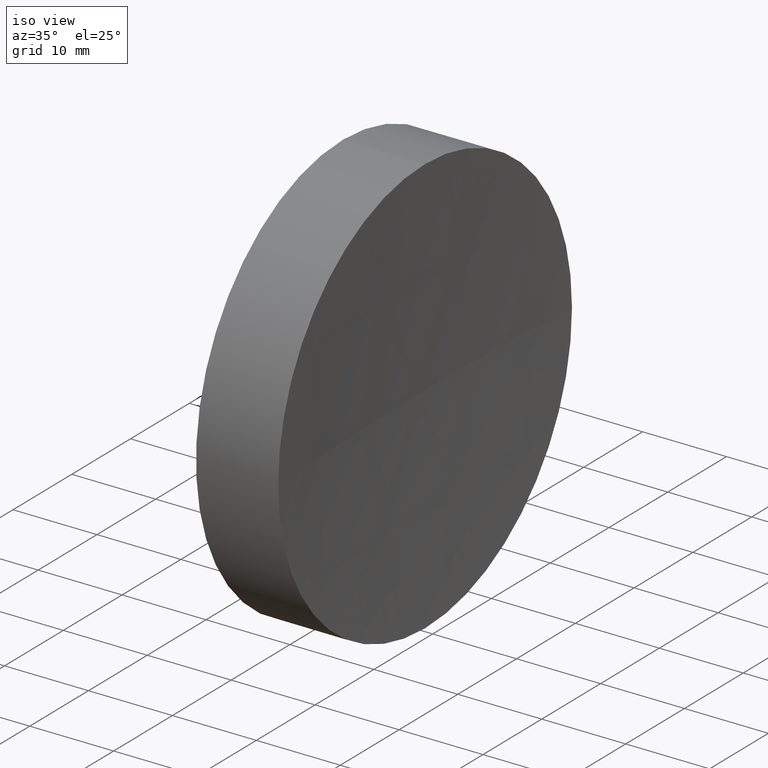
[diagram: clean part render]
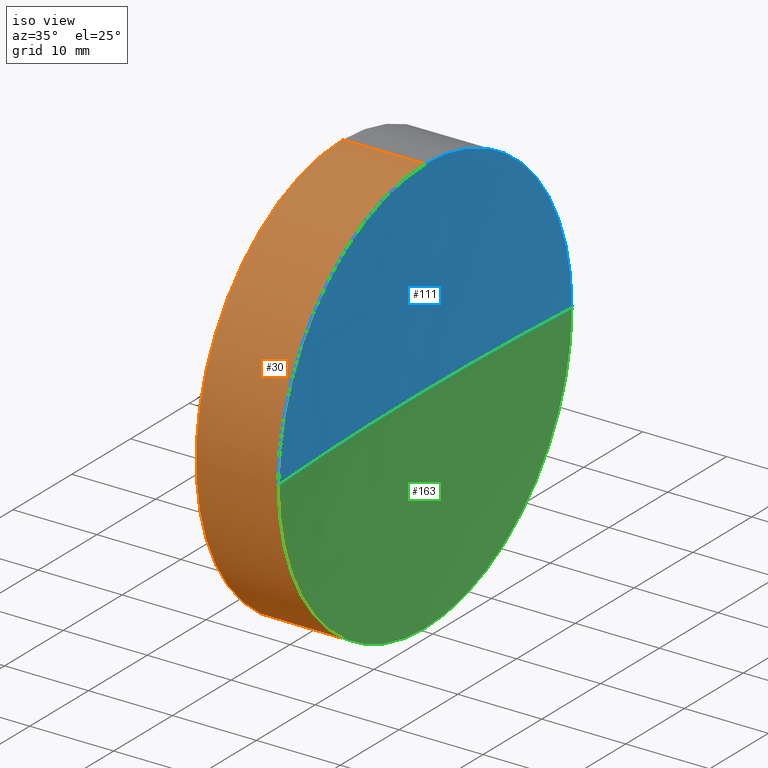
[diagram: same view with three faces highlighted in distinct colors, each labeled with its STEP entity id]
A machine part, iso view with three faces highlighted in distinct colors.
Their STEP definitions:

[orange] entity #30 — the highlighted cylindrical surface (partial cylindrical patch) has radius 25 mm, axis along (-1, -0, -0).
#2 = EDGE_CURVE ( 'NONE', #173, #88, #19, .T. ) ;
#3 = DIRECTION ( 'NONE',  ( -1.000000000000000000, -0.0000000000000000000, -0.0000000000000000000 ) ) ;
#5 = ORIENTED_EDGE ( 'NONE', *, *, #117, .F. ) ;
#7 = VECTOR ( 'NONE', #31, 1000.000000000000000 ) ;
#14 = EDGE_LOOP ( 'NONE', ( #91, #172, #168, #143, #5 ) ) ;
#17 = CARTESIAN_POINT ( 'NONE',  ( 239.9673255001412100, 138.7560422467448700, 24.99999999999999300 ) ) ;
#19 = CIRCLE ( 'NONE', #62, 24.99999999999999300 ) ;
#26 = VERTEX_POINT ( 'NONE', #63 ) ;
#28 = EDGE_CURVE ( 'NONE', #107, #173, #162, .T. ) ;
#29 = DIRECTION ( 'NONE',  ( 0.0000000000000000000, 0.0000000000000000000, 1.000000000000000000 ) ) ;
#30 = ADVANCED_FACE ( 'NONE', ( #68 ), #39, .T. ) ;
#31 = DIRECTION ( 'NONE',  ( -1.000000000000000000, -0.0000000000000000000, -0.0000000000000000000 ) ) ;
#32 = CARTESIAN_POINT ( 'NONE',  ( 239.9673255001412100, 113.7560422467442700, -3.061616997868409900E-015 ) ) ;
#36 = EDGE_CURVE ( 'NONE', #107, #120, #55, .T. ) ;
#39 = CYLINDRICAL_SURFACE ( 'NONE', #122, 24.99999999999999300 ) ;
#45 = CARTESIAN_POINT ( 'NONE',  ( 217.9702860043302100, 138.7560422467448700, 0.0000000000000000000 ) ) ;
#55 = LINE ( 'NONE', #81, #7 ) ;
#58 = CIRCLE ( 'NONE', #105, 24.99999999999999300 ) ;
#62 = AXIS2_PLACEMENT_3D ( 'NONE', #164, #65, #29 ) ;
#63 = CARTESIAN_POINT ( 'NONE',  ( 230.1853110698390300, 138.7560422467448700, 24.99999999999999300 ) ) ;
#64 = CARTESIAN_POINT ( 'NONE',  ( 230.1853110698390300, 138.7560422467448700, -24.99999999999999300 ) ) ;
#65 = DIRECTION ( 'NONE',  ( -1.000000000000000000, -0.0000000000000000000, -0.0000000000000000000 ) ) ;
#68 = FACE_OUTER_BOUND ( 'NONE', #14, .T. ) ;
#80 = CARTESIAN_POINT ( 'NONE',  ( 239.9673255001412100, 138.7560422467448700, 0.0000000000000000000 ) ) ;
#81 = CARTESIAN_POINT ( 'NONE',  ( 217.9702860043302100, 138.7560422467448700, -24.99999999999999300 ) ) ;
#88 = VERTEX_POINT ( 'NONE', #17 ) ;
#91 = ORIENTED_EDGE ( 'NONE', *, *, #36, .F. ) ;
#94 = AXIS2_PLACEMENT_3D ( 'NONE', #80, #3, #123 ) ;
#105 = AXIS2_PLACEMENT_3D ( 'NONE', #151, #179, #126 ) ;
#107 = VERTEX_POINT ( 'NONE', #155 ) ;
#117 = EDGE_CURVE ( 'NONE', #120, #26, #58, .T. ) ;
#120 = VERTEX_POINT ( 'NONE', #64 ) ;
#122 = AXIS2_PLACEMENT_3D ( 'NONE', #45, #177, #150 ) ;
#123 = DIRECTION ( 'NONE',  ( 0.0000000000000000000, 0.0000000000000000000, 1.000000000000000000 ) ) ;
#126 = DIRECTION ( 'NONE',  ( 0.0000000000000000000, 0.0000000000000000000, 1.000000000000000000 ) ) ;
#139 = VECTOR ( 'NONE', #178, 1000.000000000000000 ) ;
#140 = CARTESIAN_POINT ( 'NONE',  ( 217.9702860043302100, 138.7560422467448700, 24.99999999999999300 ) ) ;
#143 = ORIENTED_EDGE ( 'NONE', *, *, #186, .T. ) ;
#146 = LINE ( 'NONE', #140, #139 ) ;
#150 = DIRECTION ( 'NONE',  ( 0.0000000000000000000, 0.0000000000000000000, 1.000000000000000000 ) ) ;
#151 = CARTESIAN_POINT ( 'NONE',  ( 230.1853110698390300, 138.7560422467448700, 0.0000000000000000000 ) ) ;
#155 = CARTESIAN_POINT ( 'NONE',  ( 239.9673255001412100, 138.7560422467448700, -24.99999999999999300 ) ) ;
#162 = CIRCLE ( 'NONE', #94, 24.99999999999999300 ) ;
#164 = CARTESIAN_POINT ( 'NONE',  ( 239.9673255001412100, 138.7560422467448700, 0.0000000000000000000 ) ) ;
#168 = ORIENTED_EDGE ( 'NONE', *, *, #2, .T. ) ;
#172 = ORIENTED_EDGE ( 'NONE', *, *, #28, .T. ) ;
#173 = VERTEX_POINT ( 'NONE', #32 ) ;
#177 = DIRECTION ( 'NONE',  ( -1.000000000000000000, -0.0000000000000000000, -0.0000000000000000000 ) ) ;
#178 = DIRECTION ( 'NONE',  ( -1.000000000000000000, -0.0000000000000000000, -0.0000000000000000000 ) ) ;
#179 = DIRECTION ( 'NONE',  ( -1.000000000000000000, -0.0000000000000000000, -0.0000000000000000000 ) ) ;
#186 = EDGE_CURVE ( 'NONE', #88, #26, #146, .T. ) ;

[blue] entity #111 — the highlighted spherical surface has radius 400 mm.
#1 = EDGE_CURVE ( 'NONE', #173, #134, #41, .T. ) ;
#2 = EDGE_CURVE ( 'NONE', #173, #88, #19, .T. ) ;
#15 = CARTESIAN_POINT ( 'NONE',  ( 639.1853110669239900, 138.7560422467444700, 0.0000000000000000000 ) ) ;
#17 = CARTESIAN_POINT ( 'NONE',  ( 239.9673255001412100, 138.7560422467448700, 24.99999999999999300 ) ) ;
#19 = CIRCLE ( 'NONE', #62, 24.99999999999999300 ) ;
#23 = VERTEX_POINT ( 'NONE', #27 ) ;
#27 = CARTESIAN_POINT ( 'NONE',  ( 239.9673255001412100, 163.7560422467451200, 0.0000000000000000000 ) ) ;
#29 = DIRECTION ( 'NONE',  ( 0.0000000000000000000, 0.0000000000000000000, 1.000000000000000000 ) ) ;
#32 = CARTESIAN_POINT ( 'NONE',  ( 239.9673255001412100, 113.7560422467442700, -3.061616997868409900E-015 ) ) ;
#37 = CARTESIAN_POINT ( 'NONE',  ( 239.1853110669239900, 138.7560422467445000, 0.0000000000000000000 ) ) ;
#41 = CIRCLE ( 'NONE', #57, 400.0000000000000600 ) ;
#50 = DIRECTION ( 'NONE',  ( 0.0000000000000000000, 0.0000000000000000000, -1.000000000000000000 ) ) ;
#51 = CARTESIAN_POINT ( 'NONE',  ( 639.1853110669239900, 138.7560422467444700, 0.0000000000000000000 ) ) ;
#57 = AXIS2_PLACEMENT_3D ( 'NONE', #15, #124, #108 ) ;
#62 = AXIS2_PLACEMENT_3D ( 'NONE', #164, #65, #29 ) ;
#65 = DIRECTION ( 'NONE',  ( -1.000000000000000000, -0.0000000000000000000, -0.0000000000000000000 ) ) ;
#69 = AXIS2_PLACEMENT_3D ( 'NONE', #142, #50, #109 ) ;
#76 = ORIENTED_EDGE ( 'NONE', *, *, #2, .F. ) ;
#84 = SPHERICAL_SURFACE ( 'NONE', #69, 400.0000000000000000 ) ;
#88 = VERTEX_POINT ( 'NONE', #17 ) ;
#90 = ORIENTED_EDGE ( 'NONE', *, *, #171, .F. ) ;
#93 = ORIENTED_EDGE ( 'NONE', *, *, #1, .T. ) ;
#108 = DIRECTION ( 'NONE',  ( 0.0000000000000000000, 1.000000000000000000, 1.224646799147353000E-016 ) ) ;
#109 = DIRECTION ( 'NONE',  ( 0.0000000000000000000, 1.000000000000000000, 0.0000000000000000000 ) ) ;
#111 = ADVANCED_FACE ( 'NONE', ( #131 ), #84, .F. ) ;
#114 = DIRECTION ( 'NONE',  ( 1.000000000000000000, 0.0000000000000000000, 0.0000000000000000000 ) ) ;
#119 = AXIS2_PLACEMENT_3D ( 'NONE', #156, #166, #127 ) ;
#124 = DIRECTION ( 'NONE',  ( 0.0000000000000000000, 1.224646799147353200E-016, -1.000000000000000000 ) ) ;
#127 = DIRECTION ( 'NONE',  ( 0.0000000000000000000, 0.0000000000000000000, 1.000000000000000000 ) ) ;
#131 = FACE_OUTER_BOUND ( 'NONE', #159, .T. ) ;
#134 = VERTEX_POINT ( 'NONE', #37 ) ;
#141 = AXIS2_PLACEMENT_3D ( 'NONE', #51, #154, #114 ) ;
#142 = CARTESIAN_POINT ( 'NONE',  ( 639.1853110669239900, 138.7560422467444700, 0.0000000000000000000 ) ) ;
#149 = CIRCLE ( 'NONE', #119, 24.99999999999999300 ) ;
#152 = ORIENTED_EDGE ( 'NONE', *, *, #176, .F. ) ;
#154 = DIRECTION ( 'NONE',  ( 0.0000000000000000000, 0.0000000000000000000, 1.000000000000000000 ) ) ;
#156 = CARTESIAN_POINT ( 'NONE',  ( 239.9673255001412100, 138.7560422467448700, 0.0000000000000000000 ) ) ;
#159 = EDGE_LOOP ( 'NONE', ( #76, #93, #152, #90 ) ) ;
#164 = CARTESIAN_POINT ( 'NONE',  ( 239.9673255001412100, 138.7560422467448700, 0.0000000000000000000 ) ) ;
#166 = DIRECTION ( 'NONE',  ( -1.000000000000000000, -0.0000000000000000000, -0.0000000000000000000 ) ) ;
#171 = EDGE_CURVE ( 'NONE', #88, #23, #149, .T. ) ;
#173 = VERTEX_POINT ( 'NONE', #32 ) ;
#176 = EDGE_CURVE ( 'NONE', #23, #134, #185, .T. ) ;
#185 = CIRCLE ( 'NONE', #141, 400.0000000000000000 ) ;

[green] entity #163 — the highlighted spherical surface has radius 400 mm.
#1 = EDGE_CURVE ( 'NONE', #173, #134, #41, .T. ) ;
#3 = DIRECTION ( 'NONE',  ( -1.000000000000000000, -0.0000000000000000000, -0.0000000000000000000 ) ) ;
#11 = EDGE_LOOP ( 'NONE', ( #157, #95, #148, #104 ) ) ;
#15 = CARTESIAN_POINT ( 'NONE',  ( 639.1853110669239900, 138.7560422467444700, 0.0000000000000000000 ) ) ;
#23 = VERTEX_POINT ( 'NONE', #27 ) ;
#27 = CARTESIAN_POINT ( 'NONE',  ( 239.9673255001412100, 163.7560422467451200, 0.0000000000000000000 ) ) ;
#28 = EDGE_CURVE ( 'NONE', #107, #173, #162, .T. ) ;
#32 = CARTESIAN_POINT ( 'NONE',  ( 239.9673255001412100, 113.7560422467442700, -3.061616997868409900E-015 ) ) ;
#34 = CARTESIAN_POINT ( 'NONE',  ( 239.9673255001412100, 138.7560422467448700, 0.0000000000000000000 ) ) ;
#37 = CARTESIAN_POINT ( 'NONE',  ( 239.1853110669239900, 138.7560422467445000, 0.0000000000000000000 ) ) ;
#41 = CIRCLE ( 'NONE', #57, 400.0000000000000600 ) ;
#51 = CARTESIAN_POINT ( 'NONE',  ( 639.1853110669239900, 138.7560422467444700, 0.0000000000000000000 ) ) ;
#57 = AXIS2_PLACEMENT_3D ( 'NONE', #15, #124, #108 ) ;
#66 = DIRECTION ( 'NONE',  ( 0.0000000000000000000, 1.000000000000000000, 0.0000000000000000000 ) ) ;
#73 = SPHERICAL_SURFACE ( 'NONE', #132, 400.0000000000000000 ) ;
#80 = CARTESIAN_POINT ( 'NONE',  ( 239.9673255001412100, 138.7560422467448700, 0.0000000000000000000 ) ) ;
#82 = DIRECTION ( 'NONE',  ( 0.0000000000000000000, 0.0000000000000000000, 1.000000000000000000 ) ) ;
#94 = AXIS2_PLACEMENT_3D ( 'NONE', #80, #3, #123 ) ;
#95 = ORIENTED_EDGE ( 'NONE', *, *, #28, .F. ) ;
#100 = FACE_OUTER_BOUND ( 'NONE', #11, .T. ) ;
#104 = ORIENTED_EDGE ( 'NONE', *, *, #176, .T. ) ;
#107 = VERTEX_POINT ( 'NONE', #155 ) ;
#108 = DIRECTION ( 'NONE',  ( 0.0000000000000000000, 1.000000000000000000, 1.224646799147353000E-016 ) ) ;
#110 = AXIS2_PLACEMENT_3D ( 'NONE', #34, #182, #82 ) ;
#114 = DIRECTION ( 'NONE',  ( 1.000000000000000000, 0.0000000000000000000, 0.0000000000000000000 ) ) ;
#121 = EDGE_CURVE ( 'NONE', #23, #107, #136, .T. ) ;
#123 = DIRECTION ( 'NONE',  ( 0.0000000000000000000, 0.0000000000000000000, 1.000000000000000000 ) ) ;
#124 = DIRECTION ( 'NONE',  ( 0.0000000000000000000, 1.224646799147353200E-016, -1.000000000000000000 ) ) ;
#132 = AXIS2_PLACEMENT_3D ( 'NONE', #167, #183, #66 ) ;
#134 = VERTEX_POINT ( 'NONE', #37 ) ;
#136 = CIRCLE ( 'NONE', #110, 24.99999999999999300 ) ;
#141 = AXIS2_PLACEMENT_3D ( 'NONE', #51, #154, #114 ) ;
#148 = ORIENTED_EDGE ( 'NONE', *, *, #121, .F. ) ;
#154 = DIRECTION ( 'NONE',  ( 0.0000000000000000000, 0.0000000000000000000, 1.000000000000000000 ) ) ;
#155 = CARTESIAN_POINT ( 'NONE',  ( 239.9673255001412100, 138.7560422467448700, -24.99999999999999300 ) ) ;
#157 = ORIENTED_EDGE ( 'NONE', *, *, #1, .F. ) ;
#162 = CIRCLE ( 'NONE', #94, 24.99999999999999300 ) ;
#163 = ADVANCED_FACE ( 'NONE', ( #100 ), #73, .F. ) ;
#167 = CARTESIAN_POINT ( 'NONE',  ( 639.1853110669239900, 138.7560422467444700, 0.0000000000000000000 ) ) ;
#173 = VERTEX_POINT ( 'NONE', #32 ) ;
#176 = EDGE_CURVE ( 'NONE', #23, #134, #185, .T. ) ;
#182 = DIRECTION ( 'NONE',  ( -1.000000000000000000, -0.0000000000000000000, -0.0000000000000000000 ) ) ;
#183 = DIRECTION ( 'NONE',  ( 0.0000000000000000000, 0.0000000000000000000, -1.000000000000000000 ) ) ;
#185 = CIRCLE ( 'NONE', #141, 400.0000000000000000 ) ;